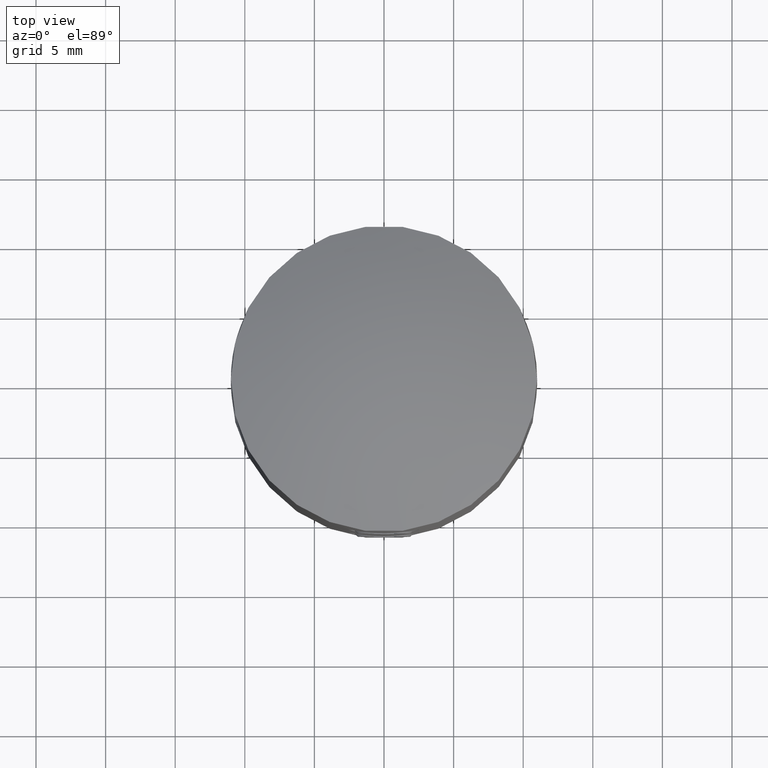
[diagram: clean part render]
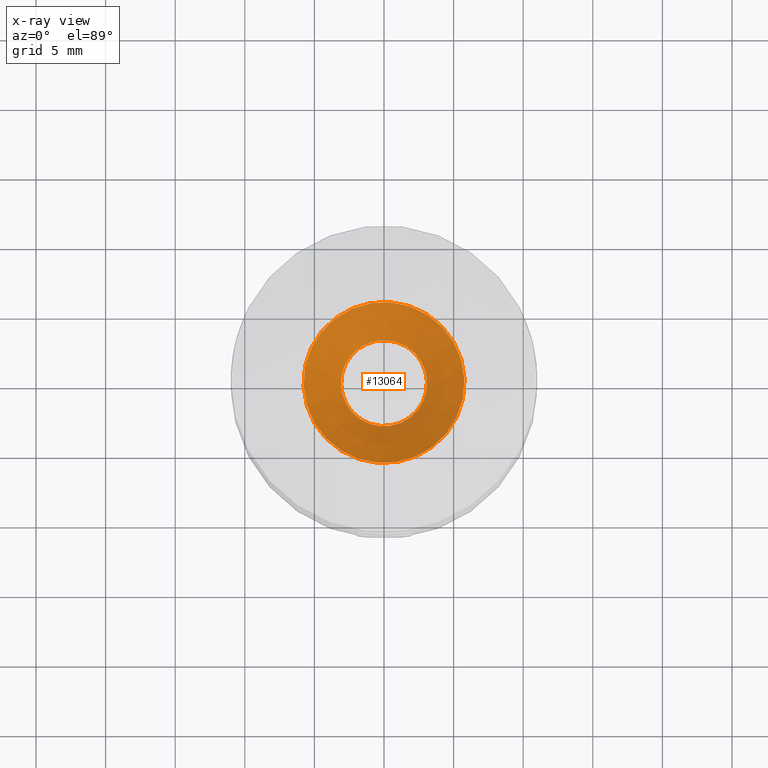
[diagram: x-ray — body ghosted, one internal face saturated and labeled with its STEP entity id]
A machine part, top view, then the same camera in x-ray: the body is ghosted and one INTERNAL B-rep face — a face not visible from any outside direction — is saturated and labeled: STEP entity #13064.
In plain terms, the highlighted conical surface has half-angle 45 deg.
Its self-contained STEP definition (entity closure, byte-faithful):
#212 = AXIS2_PLACEMENT_3D ( 'NONE', #21651, #7805, #16436 ) ;
#378 = VERTEX_POINT ( 'NONE', #428 ) ;
#428 = CARTESIAN_POINT ( 'NONE',  ( 0.5150000000000132200, 0.0000000000000000000, 5.785000000000000100 ) ) ;
#1044 = DIRECTION ( 'NONE',  ( -1.000000000000000000, -0.0000000000000000000, -0.0000000000000000000 ) ) ;
#1217 = DIRECTION ( 'NONE',  ( 0.0000000000000000000, 0.0000000000000000000, 1.000000000000000000 ) ) ;
#2464 = AXIS2_PLACEMENT_3D ( 'NONE', #20123, #6136, #1217 ) ;
#4172 = EDGE_CURVE ( 'NONE', #378, #378, #18112, .T. ) ;
#4957 = EDGE_LOOP ( 'NONE', ( #10668 ) ) ;
#6136 = DIRECTION ( 'NONE',  ( -1.000000000000000000, -0.0000000000000000000, -0.0000000000000000000 ) ) ;
#7805 = DIRECTION ( 'NONE',  ( -1.000000000000000000, -0.0000000000000000000, -0.0000000000000000000 ) ) ;
#9014 = VERTEX_POINT ( 'NONE', #16322 ) ;
#9670 = EDGE_CURVE ( 'NONE', #9014, #9014, #13411, .T. ) ;
#9807 = CARTESIAN_POINT ( 'NONE',  ( 3.212132034355964700, 0.0000000000000000000, 0.0000000000000000000 ) ) ;
#10354 = FACE_OUTER_BOUND ( 'NONE', #16873, .T. ) ;
#10668 = ORIENTED_EDGE ( 'NONE', *, *, #9670, .T. ) ;
#13064 = ADVANCED_FACE ( 'NONE', ( #17653, #10354 ), #19550, .T. ) ;
#13411 = CIRCLE ( 'NONE', #15125, 3.087867965644036400 ) ;
#15125 = AXIS2_PLACEMENT_3D ( 'NONE', #9807, #1044, #18424 ) ;
#16322 = CARTESIAN_POINT ( 'NONE',  ( 3.212132034355964700, 0.0000000000000000000, 3.087867965644036400 ) ) ;
#16436 = DIRECTION ( 'NONE',  ( 0.0000000000000000000, 0.0000000000000000000, 1.000000000000000000 ) ) ;
#16462 = ORIENTED_EDGE ( 'NONE', *, *, #4172, .F. ) ;
#16873 = EDGE_LOOP ( 'NONE', ( #16462 ) ) ;
#17653 = FACE_BOUND ( 'NONE', #4957, .T. ) ;
#18112 = CIRCLE ( 'NONE', #2464, 5.785000000000000100 ) ;
#18424 = DIRECTION ( 'NONE',  ( 0.0000000000000000000, 0.0000000000000000000, 1.000000000000000000 ) ) ;
#19550 = CONICAL_SURFACE ( 'NONE', #212, 5.785000000000000100, 0.7853981633974503900 ) ;
#20123 = CARTESIAN_POINT ( 'NONE',  ( 0.5150000000000132200, 0.0000000000000000000, 0.0000000000000000000 ) ) ;
#21651 = CARTESIAN_POINT ( 'NONE',  ( 0.5150000000000132200, 0.0000000000000000000, 0.0000000000000000000 ) ) ;